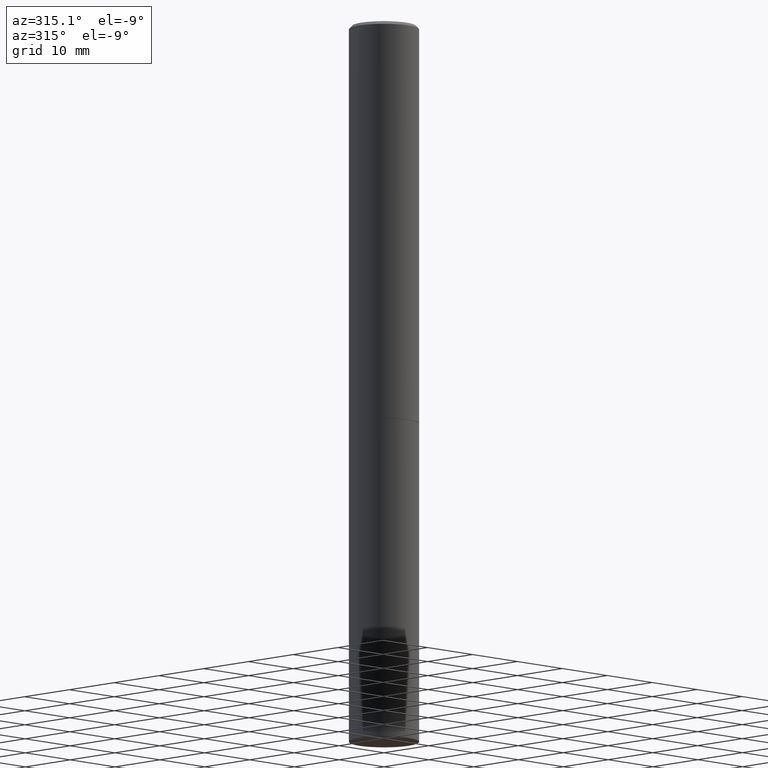
[diagram: clean part render]
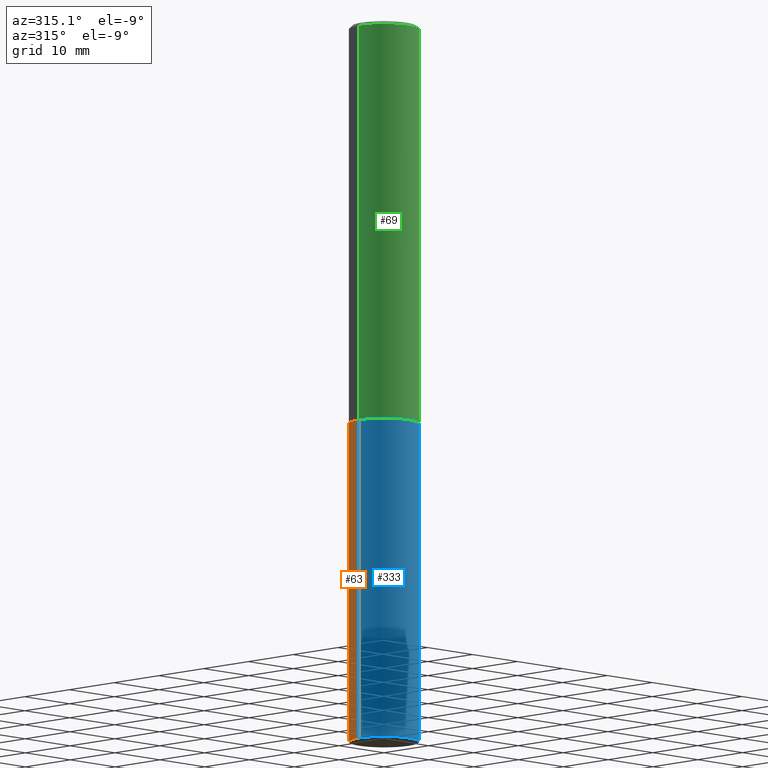
[diagram: same view with three faces highlighted in distinct colors, each labeled with its STEP entity id]
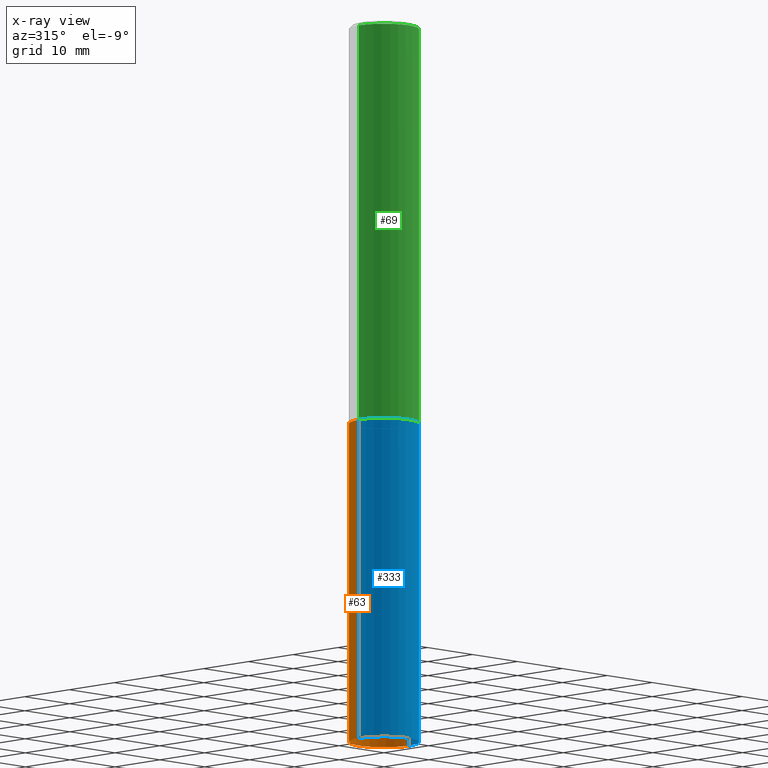
[diagram: x-ray of the same camera — body ghosted, the three highlighted faces saturated]
A machine part, auxiliary view with three faces highlighted in distinct colors.
The next image is the same camera in x-ray (body ghosted, the three faces saturated) — at least one of them is partly hidden behind the body in this view.
Their STEP definitions:

[orange] entity #63 — the highlighted cylindrical surface (edge-blend (fillet) strip) has radius 5.5562 mm, axis along (-0, 0, 1).
#14 = CARTESIAN_POINT ( 'NONE',  ( 6.113672015462842613E-29, -8.728703347107864943E-15, -2.500000000000000000 ) ) ;
#19 = DIRECTION ( 'NONE',  ( -2.445468806185136877E-29, 3.491481338843145188E-15, 1.000000000000000000 ) ) ;
#27 = DIRECTION ( 'NONE',  ( -2.445468806185136597E-29, 3.491481338843145583E-15, 1.000000000000000000 ) ) ;
#37 = EDGE_CURVE ( 'NONE', #52, #331, #191, .T. ) ;
#49 = ORIENTED_EDGE ( 'NONE', *, *, #88, .F. ) ;
#52 = VERTEX_POINT ( 'NONE', #105 ) ;
#61 = AXIS2_PLACEMENT_3D ( 'NONE', #297, #271, #272 ) ;
#63 = ADVANCED_FACE ( 'NONE', ( #167 ), #193, .T. ) ;
#64 = CARTESIAN_POINT ( 'NONE',  ( -0.2187500000000000000, -1.066587245147579176E-14, -2.500000000000000000 ) ) ;
#68 = EDGE_LOOP ( 'NONE', ( #256, #150, #225, #49 ) ) ;
#72 = VECTOR ( 'NONE', #19, 39.37007874015748143 ) ;
#78 = LINE ( 'NONE', #113, #282 ) ;
#82 = VERTEX_POINT ( 'NONE', #197 ) ;
#83 = EDGE_CURVE ( 'NONE', #82, #331, #78, .T. ) ;
#88 = EDGE_CURVE ( 'NONE', #230, #52, #283, .T. ) ;
#105 = CARTESIAN_POINT ( 'NONE',  ( 0.2187500000000000000, -1.025622643285173500E-14, -2.500000000000000000 ) ) ;
#113 = CARTESIAN_POINT ( 'NONE',  ( -0.2187500000000000000, 1.554312234475219157E-15, -1.076017050993260622E-29 ) ) ;
#122 = AXIS2_PLACEMENT_3D ( 'NONE', #14, #275, #140 ) ;
#140 = DIRECTION ( 'NONE',  ( 1.000000000000000000, -6.982962677686267499E-15, 0.000000000000000000 ) ) ;
#142 = AXIS2_PLACEMENT_3D ( 'NONE', #311, #27, #207 ) ;
#150 = ORIENTED_EDGE ( 'NONE', *, *, #83, .T. ) ;
#167 = FACE_OUTER_BOUND ( 'NONE', #68, .T. ) ;
#191 = CIRCLE ( 'NONE', #122, 0.2187500000000000000 ) ;
#193 = CYLINDRICAL_SURFACE ( 'NONE', #61, 0.2187500000000000000 ) ;
#197 = CARTESIAN_POINT ( 'NONE',  ( -0.2187500000000000000, -1.066587245147579176E-14, -4.500000000000000000 ) ) ;
#207 = DIRECTION ( 'NONE',  ( 1.000000000000000000, -6.982962677686262766E-15, 0.000000000000000000 ) ) ;
#225 = ORIENTED_EDGE ( 'NONE', *, *, #37, .F. ) ;
#230 = VERTEX_POINT ( 'NONE', #342 ) ;
#250 = CARTESIAN_POINT ( 'NONE',  ( 0.2187500000000000000, -1.527523085743870843E-15, 1.066663669705360885E-29 ) ) ;
#256 = ORIENTED_EDGE ( 'NONE', *, *, #274, .T. ) ;
#271 = DIRECTION ( 'NONE',  ( -2.445468806185136597E-29, 3.491481338843145583E-15, 1.000000000000000000 ) ) ;
#272 = DIRECTION ( 'NONE',  ( 1.000000000000000000, -6.982962677686266711E-15, 4.876176775795935232E-29 ) ) ;
#274 = EDGE_CURVE ( 'NONE', #230, #82, #354, .T. ) ;
#275 = DIRECTION ( 'NONE',  ( -2.445468806185136597E-29, 3.491481338843145583E-15, 1.000000000000000000 ) ) ;
#282 = VECTOR ( 'NONE', #306, 39.37007874015748143 ) ;
#283 = LINE ( 'NONE', #250, #72 ) ;
#297 = CARTESIAN_POINT ( 'NONE',  ( 0.000000000000000000, 0.000000000000000000, 0.000000000000000000 ) ) ;
#306 = DIRECTION ( 'NONE',  ( -2.445468806185136877E-29, 3.491481338843145188E-15, 1.000000000000000000 ) ) ;
#311 = CARTESIAN_POINT ( 'NONE',  ( 1.100460962783311469E-28, -1.571166602479415690E-14, -4.500000000000000000 ) ) ;
#331 = VERTEX_POINT ( 'NONE', #64 ) ;
#342 = CARTESIAN_POINT ( 'NONE',  ( 0.2187500000000000000, -1.723918911053802537E-14, -4.500000000000000000 ) ) ;
#354 = CIRCLE ( 'NONE', #142, 0.2187500000000000000 ) ;

[blue] entity #333 — the highlighted cylindrical surface (edge-blend (fillet) strip) has radius 5.5562 mm, axis along (-0, 0, 1).
#3 = AXIS2_PLACEMENT_3D ( 'NONE', #258, #84, #166 ) ;
#16 = DIRECTION ( 'NONE',  ( -2.445468806185136597E-29, 3.491481338843145583E-15, 1.000000000000000000 ) ) ;
#19 = DIRECTION ( 'NONE',  ( -2.445468806185136877E-29, 3.491481338843145188E-15, 1.000000000000000000 ) ) ;
#25 = AXIS2_PLACEMENT_3D ( 'NONE', #55, #235, #187 ) ;
#46 = DIRECTION ( 'NONE',  ( 1.000000000000000000, -6.982962677686266711E-15, 4.876176775795935232E-29 ) ) ;
#52 = VERTEX_POINT ( 'NONE', #105 ) ;
#55 = CARTESIAN_POINT ( 'NONE',  ( 6.113672015462842613E-29, -8.728703347107864943E-15, -2.500000000000000000 ) ) ;
#64 = CARTESIAN_POINT ( 'NONE',  ( -0.2187500000000000000, -1.066587245147579176E-14, -2.500000000000000000 ) ) ;
#72 = VECTOR ( 'NONE', #19, 39.37007874015748143 ) ;
#78 = LINE ( 'NONE', #113, #282 ) ;
#82 = VERTEX_POINT ( 'NONE', #197 ) ;
#83 = EDGE_CURVE ( 'NONE', #82, #331, #78, .T. ) ;
#84 = DIRECTION ( 'NONE',  ( -2.445468806185136597E-29, 3.491481338843145583E-15, 1.000000000000000000 ) ) ;
#88 = EDGE_CURVE ( 'NONE', #230, #52, #283, .T. ) ;
#99 = ORIENTED_EDGE ( 'NONE', *, *, #219, .F. ) ;
#101 = EDGE_LOOP ( 'NONE', ( #324, #233, #116, #99 ) ) ;
#105 = CARTESIAN_POINT ( 'NONE',  ( 0.2187500000000000000, -1.025622643285173500E-14, -2.500000000000000000 ) ) ;
#113 = CARTESIAN_POINT ( 'NONE',  ( -0.2187500000000000000, 1.554312234475219157E-15, -1.076017050993260622E-29 ) ) ;
#116 = ORIENTED_EDGE ( 'NONE', *, *, #88, .T. ) ;
#160 = CIRCLE ( 'NONE', #25, 0.2187500000000000000 ) ;
#161 = AXIS2_PLACEMENT_3D ( 'NONE', #195, #16, #46 ) ;
#166 = DIRECTION ( 'NONE',  ( 1.000000000000000000, -6.982962677686262766E-15, 0.000000000000000000 ) ) ;
#187 = DIRECTION ( 'NONE',  ( 1.000000000000000000, -6.982962677686267499E-15, 0.000000000000000000 ) ) ;
#195 = CARTESIAN_POINT ( 'NONE',  ( 0.000000000000000000, 0.000000000000000000, 0.000000000000000000 ) ) ;
#197 = CARTESIAN_POINT ( 'NONE',  ( -0.2187500000000000000, -1.066587245147579176E-14, -4.500000000000000000 ) ) ;
#218 = CIRCLE ( 'NONE', #3, 0.2187500000000000000 ) ;
#219 = EDGE_CURVE ( 'NONE', #331, #52, #160, .T. ) ;
#228 = CYLINDRICAL_SURFACE ( 'NONE', #161, 0.2187500000000000000 ) ;
#230 = VERTEX_POINT ( 'NONE', #342 ) ;
#233 = ORIENTED_EDGE ( 'NONE', *, *, #356, .T. ) ;
#235 = DIRECTION ( 'NONE',  ( -2.445468806185136597E-29, 3.491481338843145583E-15, 1.000000000000000000 ) ) ;
#250 = CARTESIAN_POINT ( 'NONE',  ( 0.2187500000000000000, -1.527523085743870843E-15, 1.066663669705360885E-29 ) ) ;
#258 = CARTESIAN_POINT ( 'NONE',  ( 1.100460962783311469E-28, -1.571166602479415690E-14, -4.500000000000000000 ) ) ;
#282 = VECTOR ( 'NONE', #306, 39.37007874015748143 ) ;
#283 = LINE ( 'NONE', #250, #72 ) ;
#306 = DIRECTION ( 'NONE',  ( -2.445468806185136877E-29, 3.491481338843145188E-15, 1.000000000000000000 ) ) ;
#322 = FACE_OUTER_BOUND ( 'NONE', #101, .T. ) ;
#324 = ORIENTED_EDGE ( 'NONE', *, *, #83, .F. ) ;
#331 = VERTEX_POINT ( 'NONE', #64 ) ;
#333 = ADVANCED_FACE ( 'NONE', ( #322 ), #228, .T. ) ;
#342 = CARTESIAN_POINT ( 'NONE',  ( 0.2187500000000000000, -1.723918911053802537E-14, -4.500000000000000000 ) ) ;
#356 = EDGE_CURVE ( 'NONE', #82, #230, #218, .T. ) ;

[green] entity #69 — the highlighted cylindrical surface (edge-blend (fillet) strip) has radius 5.5562 mm, axis along (-0, 0, 1).
#2 = CIRCLE ( 'NONE', #205, 0.2187499999999996114 ) ;
#22 = VERTEX_POINT ( 'NONE', #65 ) ;
#24 = EDGE_LOOP ( 'NONE', ( #285, #343, #340, #144 ) ) ;
#53 = AXIS2_PLACEMENT_3D ( 'NONE', #277, #145, #253 ) ;
#62 = DIRECTION ( 'NONE',  ( 1.000000000000000000, -6.982962677686266711E-15, 0.000000000000000000 ) ) ;
#65 = CARTESIAN_POINT ( 'NONE',  ( -0.2187499999999996114, 1.457693458967004981E-15, -0.02000000000000008021 ) ) ;
#69 = ADVANCED_FACE ( 'NONE', ( #133 ), #280, .T. ) ;
#77 = VERTEX_POINT ( 'NONE', #143 ) ;
#90 = DIRECTION ( 'NONE',  ( -2.445468806185136877E-29, 3.491481338843145188E-15, 1.000000000000000000 ) ) ;
#94 = AXIS2_PLACEMENT_3D ( 'NONE', #171, #179, #251 ) ;
#103 = EDGE_CURVE ( 'NONE', #202, #302, #170, .T. ) ;
#133 = FACE_OUTER_BOUND ( 'NONE', #24, .T. ) ;
#143 = CARTESIAN_POINT ( 'NONE',  ( 0.2187499999999996114, -1.570563563789383066E-15, -0.02000000000000008021 ) ) ;
#144 = ORIENTED_EDGE ( 'NONE', *, *, #149, .F. ) ;
#145 = DIRECTION ( 'NONE',  ( -2.445468806185136597E-29, 3.491481338843145583E-15, 1.000000000000000000 ) ) ;
#149 = EDGE_CURVE ( 'NONE', #22, #77, #2, .T. ) ;
#154 = LINE ( 'NONE', #162, #307 ) ;
#159 = VECTOR ( 'NONE', #90, 39.37007874015748143 ) ;
#162 = CARTESIAN_POINT ( 'NONE',  ( 0.2187499999999997780, -1.527523085743869265E-15, 1.066663669705359904E-29 ) ) ;
#170 = CIRCLE ( 'NONE', #53, 0.2187499999999999445 ) ;
#171 = CARTESIAN_POINT ( 'NONE',  ( 0.000000000000000000, 0.000000000000000000, 0.000000000000000000 ) ) ;
#179 = DIRECTION ( 'NONE',  ( -2.445468806185136597E-29, 3.491481338843145583E-15, 1.000000000000000000 ) ) ;
#192 = EDGE_CURVE ( 'NONE', #302, #77, #154, .T. ) ;
#202 = VERTEX_POINT ( 'NONE', #204 ) ;
#204 = CARTESIAN_POINT ( 'NONE',  ( -0.2187500000000000000, -2.843208511797721488E-15, -2.499000000000000998 ) ) ;
#205 = AXIS2_PLACEMENT_3D ( 'NONE', #270, #210, #62 ) ;
#210 = DIRECTION ( 'NONE',  ( -2.445468806185136597E-29, 3.491481338843145583E-15, 1.000000000000000000 ) ) ;
#241 = LINE ( 'NONE', #347, #159 ) ;
#251 = DIRECTION ( 'NONE',  ( 1.000000000000000000, -6.982962677686266711E-15, 4.876176775795935793E-29 ) ) ;
#253 = DIRECTION ( 'NONE',  ( 1.000000000000000000, -6.982962677686269077E-15, 0.000000000000000000 ) ) ;
#270 = CARTESIAN_POINT ( 'NONE',  ( 4.890937612370293302E-31, -6.982962677686318726E-17, -0.02000000000000008021 ) ) ;
#277 = CARTESIAN_POINT ( 'NONE',  ( 6.111226546656659252E-29, -8.725211865769023513E-15, -2.499000000000000998 ) ) ;
#280 = CYLINDRICAL_SURFACE ( 'NONE', #94, 0.2187499999999997780 ) ;
#285 = ORIENTED_EDGE ( 'NONE', *, *, #291, .F. ) ;
#291 = EDGE_CURVE ( 'NONE', #202, #22, #241, .T. ) ;
#292 = DIRECTION ( 'NONE',  ( -2.445468806185136877E-29, 3.491481338843145188E-15, 1.000000000000000000 ) ) ;
#294 = CARTESIAN_POINT ( 'NONE',  ( 0.2187499999999999445, -1.025273495151289515E-14, -2.499000000000000998 ) ) ;
#302 = VERTEX_POINT ( 'NONE', #294 ) ;
#307 = VECTOR ( 'NONE', #292, 39.37007874015748143 ) ;
#340 = ORIENTED_EDGE ( 'NONE', *, *, #192, .T. ) ;
#343 = ORIENTED_EDGE ( 'NONE', *, *, #103, .T. ) ;
#347 = CARTESIAN_POINT ( 'NONE',  ( -0.2187499999999997780, 1.554312234475217579E-15, -1.076017050993259501E-29 ) ) ;